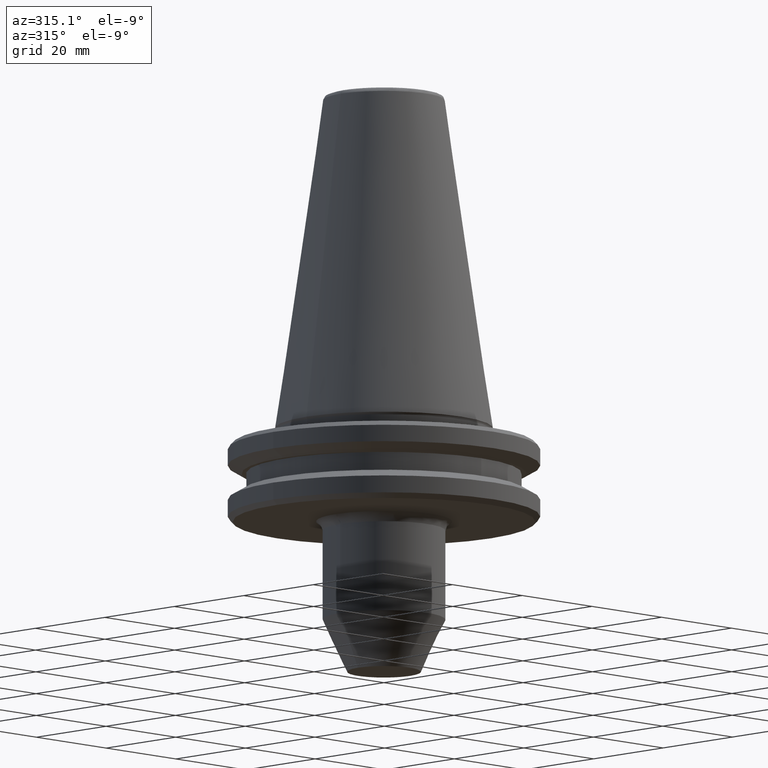
[diagram: clean part render]
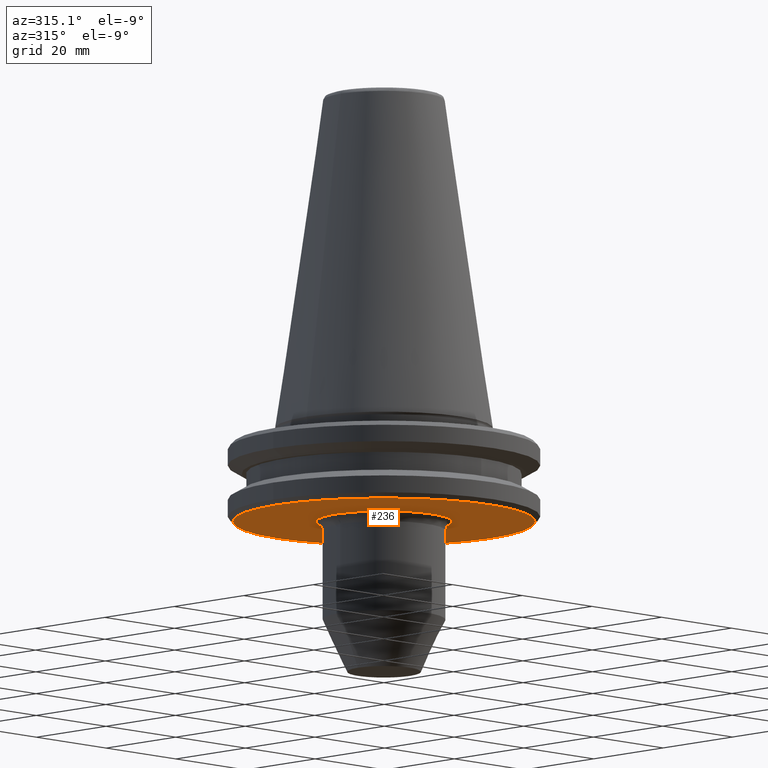
[diagram: same view with one face highlighted and labeled with its STEP entity id]
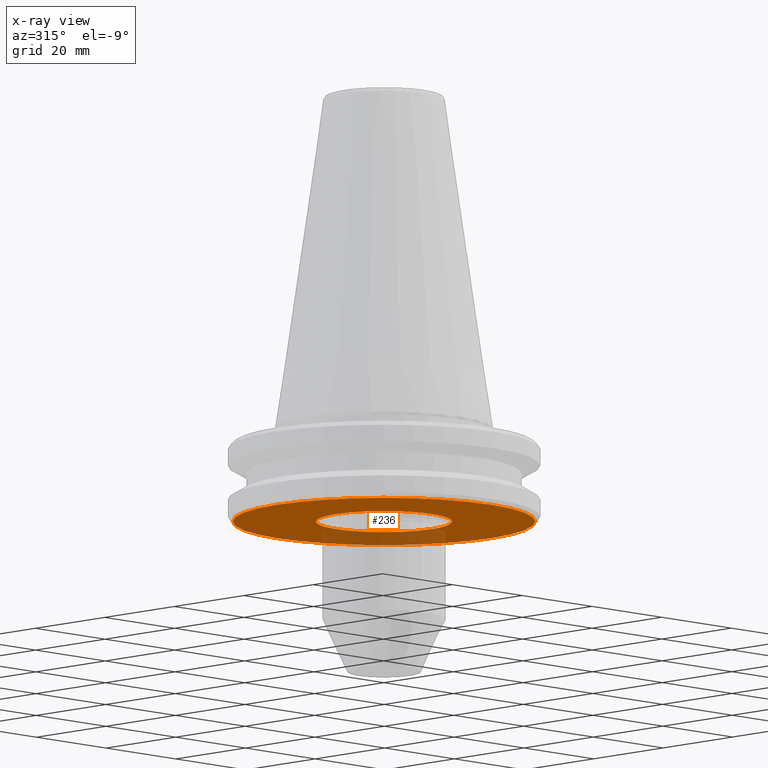
[diagram: x-ray of the same camera — body ghosted, the highlighted face saturated]
A machine part, auxiliary view. The second image highlights one B-rep face of the part: STEP entity #236.
The next image is the same camera in x-ray: the body ghosted, the highlighted face saturated — about 19% of this face is hidden behind the body in this view.
In plain terms, the highlighted planar face has unit normal (0, 0, -1).
Its self-contained STEP definition (entity closure, byte-faithful):
#34 = DIRECTION ( 'NONE',  ( 1.000000000000000000, 0.0000000000000000000, 0.0000000000000000000 ) ) ;
#35 = DIRECTION ( 'NONE',  ( -0.0000000000000000000, -0.0000000000000000000, 1.000000000000000000 ) ) ;
#36 = AXIS2_PLACEMENT_3D ( 'NONE', #147, #1023, #436 ) ;
#38 = CARTESIAN_POINT ( 'NONE',  ( 0.0000000000000000000, 0.0000000000000000000, -19.10000000000006200 ) ) ;
#43 = CARTESIAN_POINT ( 'NONE',  ( 30.75000000000072100, 0.0000000000000000000, -19.10000000000006200 ) ) ;
#142 = VERTEX_POINT ( 'NONE', #1317 ) ;
#147 = CARTESIAN_POINT ( 'NONE',  ( 29.85996502400000800, -30.95132634999999900, -19.10000000000000100 ) ) ;
#166 = AXIS2_PLACEMENT_3D ( 'NONE', #721, #720, #714 ) ;
#176 = CARTESIAN_POINT ( 'NONE',  ( -13.82553478998276800, -9.924826052885859400E-010, -19.10000000000000900 ) ) ;
#205 = CARTESIAN_POINT ( 'NONE',  ( 13.82553478998277500, 0.0000000000000000000, -19.10000000000001200 ) ) ;
#236 = ADVANCED_FACE ( 'NONE', ( #317, #347 ), #685, .T. ) ;
#280 = EDGE_CURVE ( 'NONE', #402, #293, #1235, .T. ) ;
#293 = VERTEX_POINT ( 'NONE', #43 ) ;
#317 = FACE_BOUND ( 'NONE', #341, .T. ) ;
#330 = EDGE_CURVE ( 'NONE', #142, #641, #555, .T. ) ;
#341 = EDGE_LOOP ( 'NONE', ( #994, #783 ) ) ;
#347 = FACE_OUTER_BOUND ( 'NONE', #1229, .T. ) ;
#364 = ORIENTED_EDGE ( 'NONE', *, *, #280, .F. ) ;
#402 = VERTEX_POINT ( 'NONE', #1311 ) ;
#436 = DIRECTION ( 'NONE',  ( -1.000000000000000000, 0.0000000000000000000, -0.0000000000000000000 ) ) ;
#555 =( BOUNDED_CURVE ( )  B_SPLINE_CURVE ( 3, ( #205, #1302, #935, #176 ),
 .UNSPECIFIED., .F., .T. ) 
 B_SPLINE_CURVE_WITH_KNOTS ( ( 4, 4 ),
 ( 2.509448639593081500E-018, 0.04334353907767827400 ),
 .UNSPECIFIED. ) 
 CURVE ( )  GEOMETRIC_REPRESENTATION_ITEM ( )  RATIONAL_B_SPLINE_CURVE ( ( 0.9661355370306689000, 0.3220451790102227300, 0.3220451790102227300, 0.9661355370306689000 ) ) 
 REPRESENTATION_ITEM ( '' )  );
#594 = CARTESIAN_POINT ( 'NONE',  ( 13.82553478998277500, 0.0000000000000000000, -19.10000000000001200 ) ) ;
#596 = CARTESIAN_POINT ( 'NONE',  ( 13.82553478998279300, -27.65106958078503400, -19.10000000000000500 ) ) ;
#615 = CARTESIAN_POINT ( 'NONE',  ( -13.82553478998279300, -27.65106958078503400, -19.10000000000000500 ) ) ;
#631 = CARTESIAN_POINT ( 'NONE',  ( -13.82553478998276800, -9.924826052885859400E-010, -19.10000000000001200 ) ) ;
#641 = VERTEX_POINT ( 'NONE', #796 ) ;
#685 = PLANE ( 'NONE',  #36 ) ;
#695 = EDGE_CURVE ( 'NONE', #293, #402, #1102, .T. ) ;
#714 = DIRECTION ( 'NONE',  ( 1.000000000000000000, 0.0000000000000000000, 0.0000000000000000000 ) ) ;
#716 = ORIENTED_EDGE ( 'NONE', *, *, #695, .F. ) ;
#720 = DIRECTION ( 'NONE',  ( -0.0000000000000000000, -0.0000000000000000000, 1.000000000000000000 ) ) ;
#721 = CARTESIAN_POINT ( 'NONE',  ( 0.0000000000000000000, 0.0000000000000000000, -19.10000000000006200 ) ) ;
#783 = ORIENTED_EDGE ( 'NONE', *, *, #886, .T. ) ;
#796 = CARTESIAN_POINT ( 'NONE',  ( -13.82553478998276800, -9.924826052885859400E-010, -19.10000000000000900 ) ) ;
#815 =( BOUNDED_CURVE ( )  B_SPLINE_CURVE ( 3, ( #631, #615, #596, #594 ),
 .UNSPECIFIED., .F., .F. ) 
 B_SPLINE_CURVE_WITH_KNOTS ( ( 4, 4 ),
 ( 4.207812494062200400E-013, 0.04334353907654568700 ),
 .UNSPECIFIED. ) 
 CURVE ( )  GEOMETRIC_REPRESENTATION_ITEM ( )  RATIONAL_B_SPLINE_CURVE ( ( 0.9661355370306719000, 0.3220451790102236700, 0.3220451790102236700, 0.9661355370306719000 ) ) 
 REPRESENTATION_ITEM ( '' )  );
#886 = EDGE_CURVE ( 'NONE', #641, #142, #815, .T. ) ;
#935 = CARTESIAN_POINT ( 'NONE',  ( -13.82553478998277000, 27.65106958078499800, -19.10000000000000900 ) ) ;
#994 = ORIENTED_EDGE ( 'NONE', *, *, #330, .T. ) ;
#1023 = DIRECTION ( 'NONE',  ( 0.0000000000000000000, 0.0000000000000000000, -1.000000000000000000 ) ) ;
#1102 = CIRCLE ( 'NONE', #166, 30.75000000000072100 ) ;
#1147 = AXIS2_PLACEMENT_3D ( 'NONE', #38, #35, #34 ) ;
#1229 = EDGE_LOOP ( 'NONE', ( #716, #364 ) ) ;
#1235 = CIRCLE ( 'NONE', #1147, 30.75000000000072100 ) ;
#1302 = CARTESIAN_POINT ( 'NONE',  ( 13.82553478998277000, 27.65106958078499800, -19.10000000000000900 ) ) ;
#1311 = CARTESIAN_POINT ( 'NONE',  ( -30.75000000000072100, 3.827021247335525400E-015, -19.10000000000006200 ) ) ;
#1317 = CARTESIAN_POINT ( 'NONE',  ( 13.82553478998277500, 0.0000000000000000000, -19.10000000000001200 ) ) ;